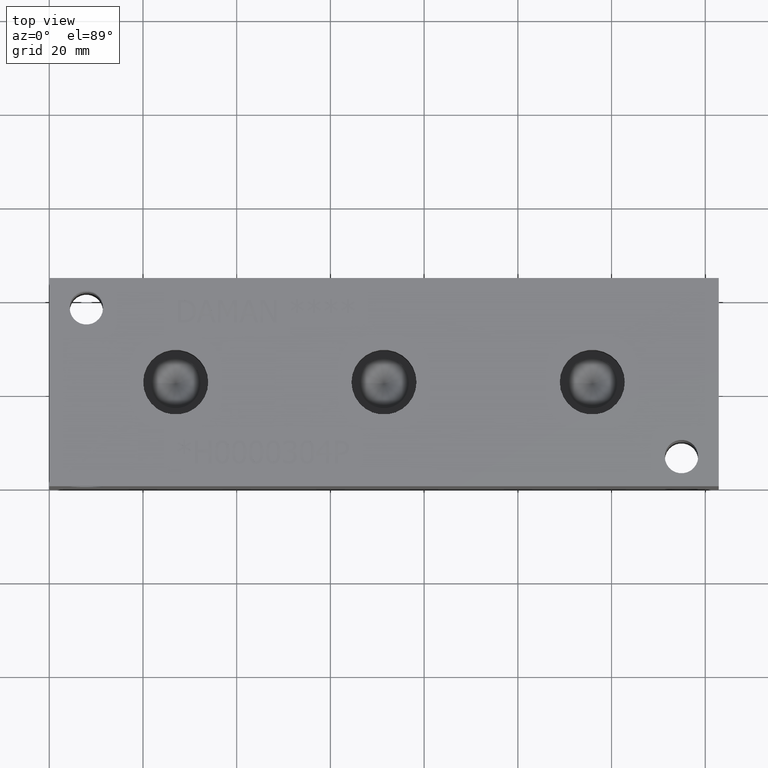
[diagram: clean part render]
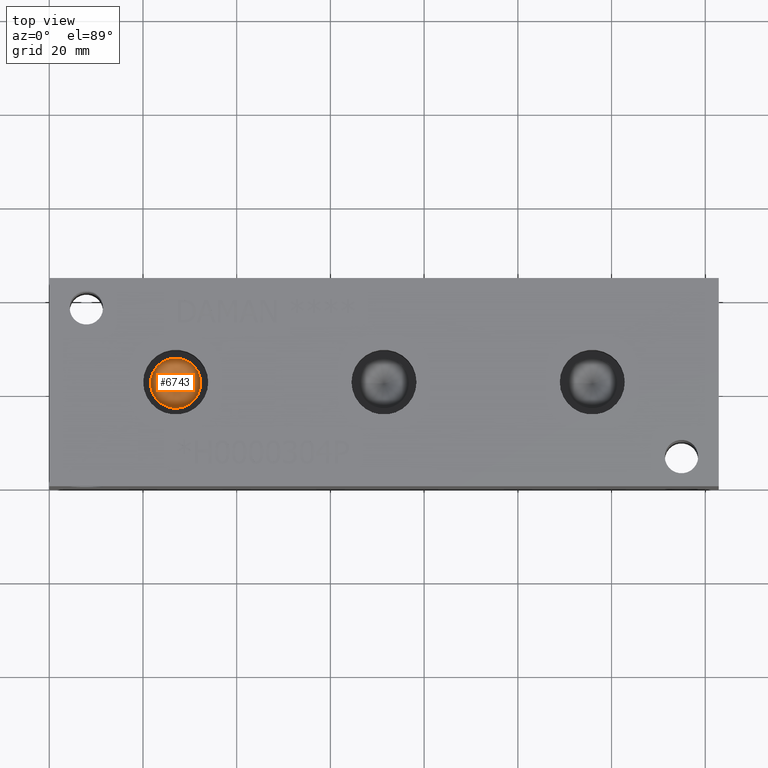
[diagram: same view with one face highlighted and labeled with its STEP entity id]
A machine part, top view. The second image highlights one B-rep face of the part: STEP entity #6743.
In plain terms, the highlighted conical surface has half-angle 60 deg.
Its self-contained STEP definition (entity closure, byte-faithful):
#15=CONICAL_SURFACE('',#7034,2.6797,1.0471975511966);
#68=CIRCLE('',#7035,5.3594);
#69=CIRCLE('',#7036,5.3594);
#681=FACE_OUTER_BOUND('',#1057,.T.);
#1057=EDGE_LOOP('',(#5924,#5925,#5926,#5927));
#1750=LINE('',#11391,#2429);
#2429=VECTOR('',#8255,2.6797);
#3227=VERTEX_POINT('',#11387);
#3228=VERTEX_POINT('',#11388);
#3229=VERTEX_POINT('',#11390);
#4139=EDGE_CURVE('',#3227,#3228,#68,.T.);
#4140=EDGE_CURVE('',#3228,#3229,#1750,.T.);
#4141=EDGE_CURVE('',#3228,#3227,#69,.T.);
#5924=ORIENTED_EDGE('',*,*,#4139,.T.);
#5925=ORIENTED_EDGE('',*,*,#4140,.T.);
#5926=ORIENTED_EDGE('',*,*,#4140,.F.);
#5927=ORIENTED_EDGE('',*,*,#4141,.T.);
#6743=ADVANCED_FACE('',(#681),#15,.F.);
#7034=AXIS2_PLACEMENT_3D('',#11386,#8251,#8252);
#7035=AXIS2_PLACEMENT_3D('',#11389,#8253,#8254);
#7036=AXIS2_PLACEMENT_3D('',#11392,#8256,#8257);
#8251=DIRECTION('center_axis',(0.,0.,1.));
#8252=DIRECTION('ref_axis',(1.,0.,0.));
#8253=DIRECTION('center_axis',(0.,0.,1.));
#8254=DIRECTION('ref_axis',(1.,0.,0.));
#8255=DIRECTION('',(0.866025403784439,1.06057523872491E-16,-0.5));
#8256=DIRECTION('center_axis',(0.,0.,1.));
#8257=DIRECTION('ref_axis',(1.,0.,0.));
#11386=CARTESIAN_POINT('Origin',(26.9748,22.225,31.1888444836526));
#11387=CARTESIAN_POINT('',(32.3342,22.225,32.73597));
#11388=CARTESIAN_POINT('',(21.6154,22.225,32.73597));
#11389=CARTESIAN_POINT('Origin',(26.9748,22.225,32.73597));
#11390=CARTESIAN_POINT('',(26.9748,22.225,29.6417189673051));
#11391=CARTESIAN_POINT('',(24.2951,22.225,31.1888444836526));
#11392=CARTESIAN_POINT('Origin',(26.9748,22.225,32.73597));